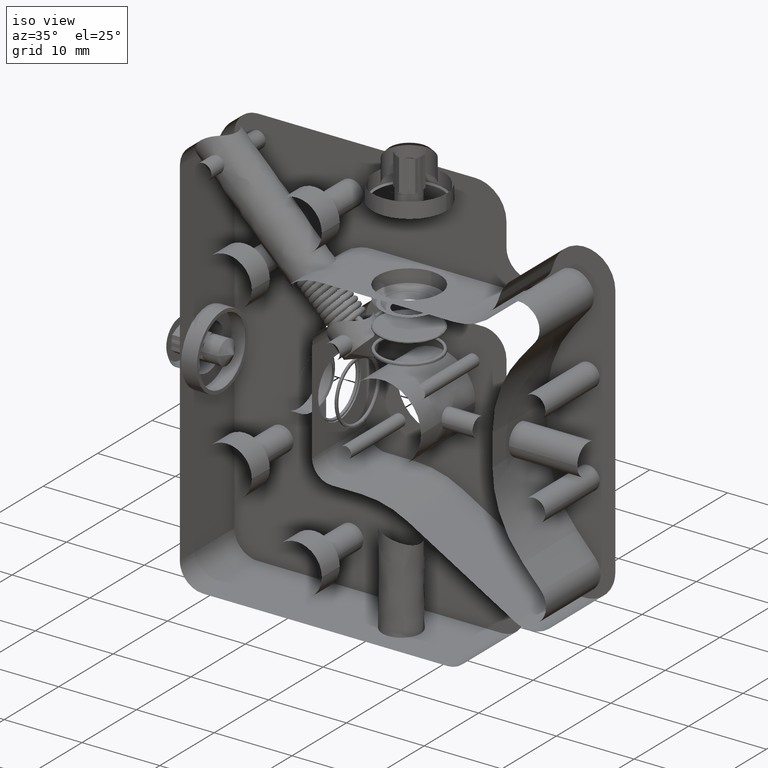
[diagram: clean part render]
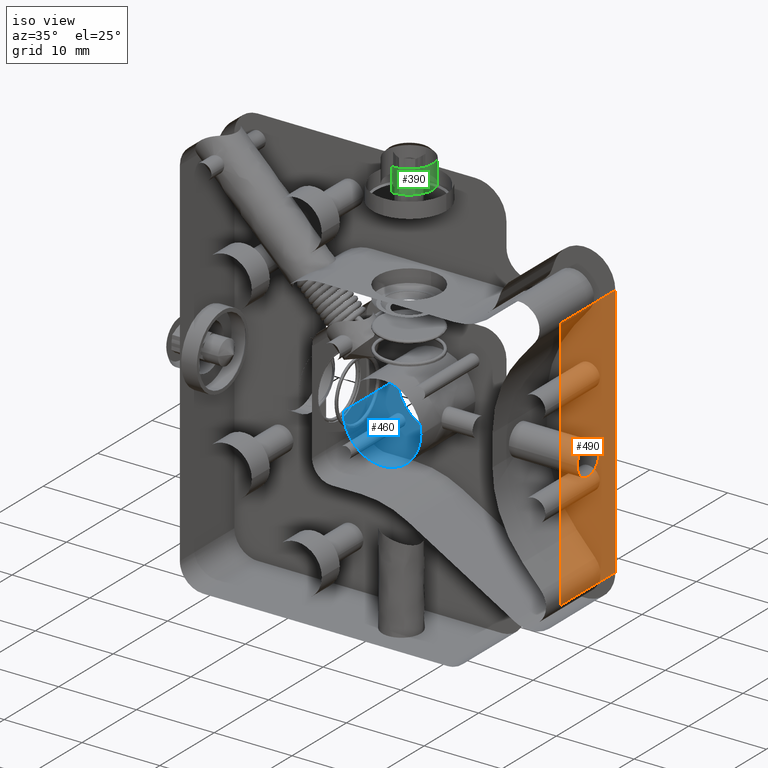
[diagram: same view with three faces highlighted in distinct colors, each labeled with its STEP entity id]
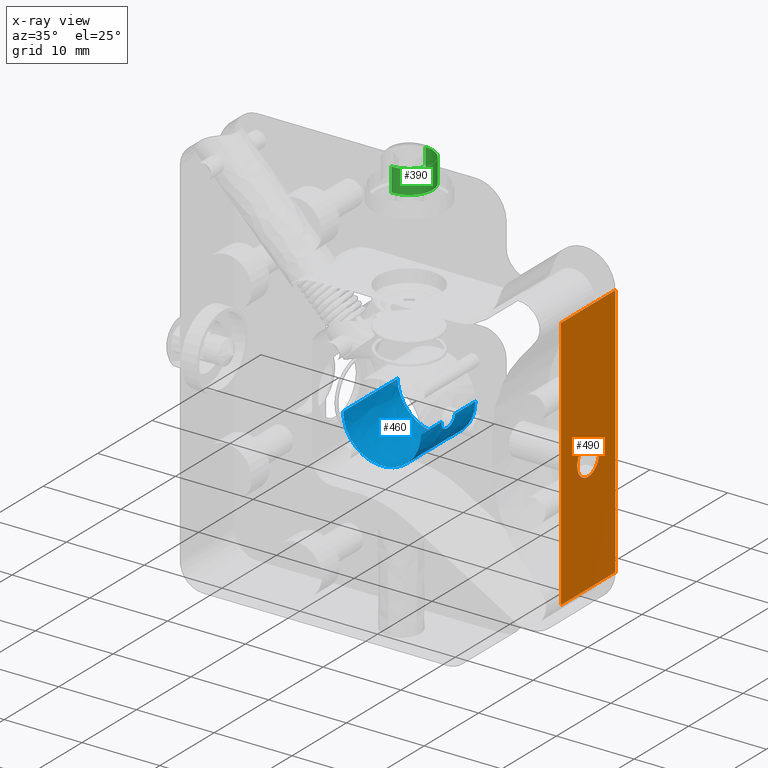
[diagram: x-ray of the same camera — body ghosted, the three highlighted faces saturated]
A machine part, iso view with three faces highlighted in distinct colors.
The next image is the same camera in x-ray (body ghosted, the three faces saturated) — at least one of them is partly hidden behind the body in this view.
Their STEP definitions:

[orange] entity #490 — the highlighted face is a freeform B-spline surface patch.
#275=FACE_BOUND('',#1079,.T.);
#490=ADVANCED_FACE('',(#771,#275),#10297,.T.);
#771=FACE_OUTER_BOUND('',#1078,.T.);
#1078=EDGE_LOOP('',(#2164,#2165,#2166,#2167));
#1079=EDGE_LOOP('',(#2168,#2169,#2170));
#2164=ORIENTED_EDGE('',*,*,#8824,.T.);
#2165=ORIENTED_EDGE('',*,*,#8825,.T.);
#2166=ORIENTED_EDGE('',*,*,#8826,.T.);
#2167=ORIENTED_EDGE('',*,*,#8822,.F.);
#2168=ORIENTED_EDGE('',*,*,#8679,.F.);
#2169=ORIENTED_EDGE('',*,*,#8683,.F.);
#2170=ORIENTED_EDGE('',*,*,#8686,.F.);
#3457=PCURVE('',#10420,#4980);
#3461=PCURVE('',#10421,#4984);
#3466=PCURVE('',#10421,#4989);
#3684=PCURVE('',#10447,#5207);
#3687=PCURVE('',#10297,#5210);
#3688=PCURVE('',#10297,#5211);
#3689=PCURVE('',#10297,#5212);
#3690=PCURVE('',#10297,#5213);
#3691=PCURVE('',#10297,#5214);
#3692=PCURVE('',#10297,#5215);
#3693=PCURVE('',#10297,#5216);
#3697=PCURVE('',#10448,#5220);
#3792=PCURVE('',#10307,#5315);
#3856=PCURVE('',#10308,#5379);
#4980=DEFINITIONAL_REPRESENTATION('',(#6633),#38234);
#4984=DEFINITIONAL_REPRESENTATION('',(#6639),#38234);
#4989=DEFINITIONAL_REPRESENTATION('',(#6645),#38234);
#5207=DEFINITIONAL_REPRESENTATION('',(#6917),#38234);
#5210=DEFINITIONAL_REPRESENTATION('',(#6921),#38234);
#5211=DEFINITIONAL_REPRESENTATION('',(#6923),#38234);
#5212=DEFINITIONAL_REPRESENTATION('',(#6925),#38234);
#5213=DEFINITIONAL_REPRESENTATION('',(#6926),#38234);
#5214=DEFINITIONAL_REPRESENTATION('',(#9441),#38234);
#5215=DEFINITIONAL_REPRESENTATION('',(#9442),#38234);
#5216=DEFINITIONAL_REPRESENTATION('',(#9443),#38234);
#5220=DEFINITIONAL_REPRESENTATION('',(#6931),#38234);
#5315=DEFINITIONAL_REPRESENTATION('',(#7034),#38234);
#5379=DEFINITIONAL_REPRESENTATION('',(#7055),#38234);
#6633=B_SPLINE_CURVE_WITH_KNOTS('',1,(#17084,#17085),.UNSPECIFIED.,.F.,
 .F.,(2,2),(-3.14159265358979,0.),.UNSPECIFIED.);
#6639=B_SPLINE_CURVE_WITH_KNOTS('',1,(#17108,#17109),.UNSPECIFIED.,.F.,
 .F.,(2,2),(-6.28318530717959,-3.14159265358979),.UNSPECIFIED.);
#6645=B_SPLINE_CURVE_WITH_KNOTS('',1,(#17140,#17141),.UNSPECIFIED.,.F.,
 .F.,(2,2),(-6.28318530717959,0.),.UNSPECIFIED.);
#6916=B_SPLINE_CURVE_WITH_KNOTS('',1,(#18590,#18591),.UNSPECIFIED.,.F.,
 .F.,(2,2),(-10.,0.),.UNSPECIFIED.);
#6917=B_SPLINE_CURVE_WITH_KNOTS('',1,(#18592,#18593),.UNSPECIFIED.,.F.,
 .F.,(2,2),(-10.,0.),.UNSPECIFIED.);
#6920=B_SPLINE_CURVE_WITH_KNOTS('',1,(#18603,#18604),.UNSPECIFIED.,.F.,
 .F.,(2,2),(0.,32.7988440148156),.UNSPECIFIED.);
#6921=B_SPLINE_CURVE_WITH_KNOTS('',1,(#18605,#18606),.UNSPECIFIED.,.F.,
 .F.,(2,2),(0.,32.7988440148156),.UNSPECIFIED.);
#6922=B_SPLINE_CURVE_WITH_KNOTS('',1,(#18607,#18608),.UNSPECIFIED.,.F.,
 .F.,(2,2),(-10.,0.),.UNSPECIFIED.);
#6923=B_SPLINE_CURVE_WITH_KNOTS('',1,(#18609,#18610),.UNSPECIFIED.,.F.,
 .F.,(2,2),(-10.,0.),.UNSPECIFIED.);
#6924=B_SPLINE_CURVE_WITH_KNOTS('',1,(#18611,#18612),.UNSPECIFIED.,.F.,
 .F.,(2,2),(0.,32.7988440148156),.UNSPECIFIED.);
#6925=B_SPLINE_CURVE_WITH_KNOTS('',1,(#18613,#18614),.UNSPECIFIED.,.F.,
 .F.,(2,2),(0.,32.7988440148156),.UNSPECIFIED.);
#6926=B_SPLINE_CURVE_WITH_KNOTS('',1,(#18615,#18616),.UNSPECIFIED.,.F.,
 .F.,(2,2),(-10.,0.),.UNSPECIFIED.);
#6931=B_SPLINE_CURVE_WITH_KNOTS('',1,(#18646,#18647),.UNSPECIFIED.,.F.,
 .F.,(2,2),(-10.,0.),.UNSPECIFIED.);
#7034=B_SPLINE_CURVE_WITH_KNOTS('',1,(#18976,#18977),.UNSPECIFIED.,.F.,
 .F.,(2,2),(0.,32.7988440148156),.UNSPECIFIED.);
#7055=B_SPLINE_CURVE_WITH_KNOTS('',1,(#19199,#19200),.UNSPECIFIED.,.F.,
 .F.,(2,2),(0.,32.7988440148156),.UNSPECIFIED.);
#7875=SURFACE_CURVE('',#9353,(#3457,#3691),.PCURVE_S1.);
#7879=SURFACE_CURVE('',#9355,(#3461,#3692),.PCURVE_S1.);
#7882=SURFACE_CURVE('',#9357,(#3466,#3693),.PCURVE_S1.);
#8018=SURFACE_CURVE('',#6916,(#3684,#3690),.PCURVE_S1.);
#8020=SURFACE_CURVE('',#6920,(#3687,#3856),.PCURVE_S1.);
#8021=SURFACE_CURVE('',#6922,(#3688,#3697),.PCURVE_S1.);
#8022=SURFACE_CURVE('',#6924,(#3689,#3792),.PCURVE_S1.);
#8679=EDGE_CURVE('',#9986,#9985,#7875,.T.);
#8683=EDGE_CURVE('',#9984,#9986,#7879,.T.);
#8686=EDGE_CURVE('',#9985,#9984,#7882,.T.);
#8822=EDGE_CURVE('',#10082,#10083,#8018,.T.);
#8824=EDGE_CURVE('',#10082,#10084,#8020,.T.);
#8825=EDGE_CURVE('',#10084,#10085,#8021,.T.);
#8826=EDGE_CURVE('',#10085,#10083,#8022,.T.);
#9353=(
BOUNDED_CURVE()
B_SPLINE_CURVE(2,(#17081,#17082,#17083),.UNSPECIFIED.,.F.,.F.)
B_SPLINE_CURVE_WITH_KNOTS((3,3),(-3.14159265358979,0.),.UNSPECIFIED.)
CURVE()
GEOMETRIC_REPRESENTATION_ITEM()
RATIONAL_B_SPLINE_CURVE((1.,0.707106781186553,1.))
REPRESENTATION_ITEM('')
);
#9355=(
BOUNDED_CURVE()
B_SPLINE_CURVE(2,(#17105,#17106,#17107),.UNSPECIFIED.,.F.,.F.)
B_SPLINE_CURVE_WITH_KNOTS((3,3),(-6.28318530717959,-3.14159265358979),
 .UNSPECIFIED.)
CURVE()
GEOMETRIC_REPRESENTATION_ITEM()
RATIONAL_B_SPLINE_CURVE((1.,0.707106781186555,1.))
REPRESENTATION_ITEM('')
);
#9357=(
BOUNDED_CURVE()
B_SPLINE_CURVE(2,(#17135,#17136,#17137,#17138,#17139),.UNSPECIFIED.,.F.,
 .F.)
B_SPLINE_CURVE_WITH_KNOTS((3,2,3),(-6.28318530717959,-3.14159265358979,
0.),.UNSPECIFIED.)
CURVE()
GEOMETRIC_REPRESENTATION_ITEM()
RATIONAL_B_SPLINE_CURVE((1.,0.707106781186543,1.,0.707106781186543,1.))
REPRESENTATION_ITEM('')
);
#9441=(
BOUNDED_CURVE()
B_SPLINE_CURVE(2,(#18617,#18618,#18619),.UNSPECIFIED.,.F.,.F.)
B_SPLINE_CURVE_WITH_KNOTS((3,3),(-3.14159265358979,0.),.UNSPECIFIED.)
CURVE()
GEOMETRIC_REPRESENTATION_ITEM()
RATIONAL_B_SPLINE_CURVE((1.,0.70710678118655,1.))
REPRESENTATION_ITEM('')
);
#9442=(
BOUNDED_CURVE()
B_SPLINE_CURVE(2,(#18620,#18621,#18622),.UNSPECIFIED.,.F.,.F.)
B_SPLINE_CURVE_WITH_KNOTS((3,3),(-6.28318530717959,-3.14159265358979),
 .UNSPECIFIED.)
CURVE()
GEOMETRIC_REPRESENTATION_ITEM()
RATIONAL_B_SPLINE_CURVE((1.,0.707106781186545,1.))
REPRESENTATION_ITEM('')
);
#9443=(
BOUNDED_CURVE()
B_SPLINE_CURVE(2,(#18623,#18624,#18625,#18626,#18627),.UNSPECIFIED.,.F.,
 .F.)
B_SPLINE_CURVE_WITH_KNOTS((3,2,3),(-6.28318530717959,-3.14159265358979,
0.),.UNSPECIFIED.)
CURVE()
GEOMETRIC_REPRESENTATION_ITEM()
RATIONAL_B_SPLINE_CURVE((1.,0.707106781186548,1.,0.707106781186548,1.))
REPRESENTATION_ITEM('')
);
#9984=VERTEX_POINT('',#13544);
#9985=VERTEX_POINT('',#13545);
#9986=VERTEX_POINT('',#13546);
#10082=VERTEX_POINT('',#13642);
#10083=VERTEX_POINT('',#13643);
#10084=VERTEX_POINT('',#13644);
#10085=VERTEX_POINT('',#13645);
#10297=B_SPLINE_SURFACE_WITH_KNOTS('',1,1,((#13090,#13091),(#13092,#13093)),
 .UNSPECIFIED.,.F.,.F.,.F.,(2,2),(2,2),(-11.12,1.12000000000012),(-36.1987284162972,
3.39988440148157),.UNSPECIFIED.);
#10307=B_SPLINE_SURFACE_WITH_KNOTS('',1,1,((#13256,#13257),(#13258,#13259)),
 .UNSPECIFIED.,.F.,.F.,.F.,(2,2),(2,2),(-31.1921061117909,31.4478938882091),
(-31.7014055422227,27.3385944577773),.UNSPECIFIED.);
#10308=B_SPLINE_SURFACE_WITH_KNOTS('',1,1,((#13260,#13261),(#13262,#13263)),
 .UNSPECIFIED.,.F.,.F.,.F.,(2,2),(2,2),(-31.7014055422227,27.3385944577773),
(-31.1921061117909,31.4478938882091),.UNSPECIFIED.);
#10420=(
BOUNDED_SURFACE()
B_SPLINE_SURFACE(1,2,((#12534,#12535,#12536,#12537,#12538,#12539,#12540,
#12541,#12542),(#12543,#12544,#12545,#12546,#12547,#12548,#12549,#12550,
#12551)),.UNSPECIFIED.,.F.,.F.,.F.)
B_SPLINE_SURFACE_WITH_KNOTS((2,2),(3,2,2,2,3),(0.,10.8),(0.,1.5707963267949,
3.14159265358979,4.71238898038469,6.28318530717959),.UNSPECIFIED.)
GEOMETRIC_REPRESENTATION_ITEM()
RATIONAL_B_SPLINE_SURFACE(((1.,0.707106781186548,1.,0.707106781186548,1.,
0.707106781186548,1.,0.707106781186548,1.),(1.,0.707106781186548,1.,0.707106781186548,
1.,0.707106781186548,1.,0.707106781186548,1.)))
REPRESENTATION_ITEM('')
SURFACE()
);
#10421=(
BOUNDED_SURFACE()
B_SPLINE_SURFACE(1,2,((#12552,#12553,#12554,#12555,#12556,#12557,#12558,
#12559,#12560),(#12561,#12562,#12563,#12564,#12565,#12566,#12567,#12568,
#12569)),.UNSPECIFIED.,.F.,.F.,.F.)
B_SPLINE_SURFACE_WITH_KNOTS((2,2),(3,2,2,2,3),(0.,10.8),(0.,1.5707963267949,
3.14159265358979,4.71238898038469,6.28318530717959),.UNSPECIFIED.)
GEOMETRIC_REPRESENTATION_ITEM()
RATIONAL_B_SPLINE_SURFACE(((1.,0.707106781186548,1.,0.707106781186548,1.,
0.707106781186548,1.,0.707106781186548,1.),(1.,0.707106781186548,1.,0.707106781186548,
1.,0.707106781186548,1.,0.707106781186548,1.)))
REPRESENTATION_ITEM('')
SURFACE()
);
#10447=(
BOUNDED_SURFACE()
B_SPLINE_SURFACE(2,1,((#13072,#13073),(#13074,#13075),(#13076,#13077),(#13078,
#13079),(#13080,#13081),(#13082,#13083),(#13084,#13085),(#13086,#13087),
(#13088,#13089)),.UNSPECIFIED.,.T.,.F.,.F.)
B_SPLINE_SURFACE_WITH_KNOTS((3,2,2,2,3),(2,2),(0.,1.5707963267949,3.14159265358979,
4.71238898038469,6.28318530717959),(0.,12.24),.UNSPECIFIED.)
GEOMETRIC_REPRESENTATION_ITEM()
RATIONAL_B_SPLINE_SURFACE(((1.,1.),(0.707106781186548,0.707106781186548),
(1.,1.),(0.707106781186548,0.707106781186548),(1.,1.),(0.707106781186548,
0.707106781186548),(1.,1.),(0.707106781186548,0.707106781186548),(1.,1.)))
REPRESENTATION_ITEM('')
SURFACE()
);
#10448=(
BOUNDED_SURFACE()
B_SPLINE_SURFACE(2,1,((#13094,#13095),(#13096,#13097),(#13098,#13099),(#13100,
#13101),(#13102,#13103),(#13104,#13105),(#13106,#13107),(#13108,#13109),
(#13110,#13111)),.UNSPECIFIED.,.T.,.F.,.F.)
B_SPLINE_SURFACE_WITH_KNOTS((3,2,2,2,3),(2,2),(0.,1.5707963267949,3.14159265358979,
4.71238898038469,6.28318530717959),(0.,12.24),.UNSPECIFIED.)
GEOMETRIC_REPRESENTATION_ITEM()
RATIONAL_B_SPLINE_SURFACE(((1.,1.),(0.707106781186548,0.707106781186548),
(1.,1.),(0.707106781186548,0.707106781186548),(1.,1.),(0.707106781186548,
0.707106781186548),(1.,1.),(0.707106781186548,0.707106781186548),(1.,1.)))
REPRESENTATION_ITEM('')
SURFACE()
);
#12534=CARTESIAN_POINT('',(2.07027620806736,34.4689438588719,51.5367132204771));
#12535=CARTESIAN_POINT('',(2.07027620806736,32.4689438588719,51.5367132204771));
#12536=CARTESIAN_POINT('',(2.07027620806736,32.4689438588719,49.5367132204771));
#12537=CARTESIAN_POINT('',(2.07027620806736,32.4689438588719,47.5367132204771));
#12538=CARTESIAN_POINT('',(2.07027620806736,34.4689438588719,47.5367132204771));
#12539=CARTESIAN_POINT('',(2.07027620806736,36.4689438588719,47.5367132204771));
#12540=CARTESIAN_POINT('',(2.07027620806736,36.4689438588719,49.5367132204771));
#12541=CARTESIAN_POINT('',(2.07027620806736,36.4689438588719,51.5367132204771));
#12542=CARTESIAN_POINT('',(2.07027620806736,34.4689438588719,51.5367132204771));
#12543=CARTESIAN_POINT('',(12.8702762080674,34.4689438588719,51.5367132204771));
#12544=CARTESIAN_POINT('',(12.8702762080674,32.4689438588719,51.5367132204771));
#12545=CARTESIAN_POINT('',(12.8702762080674,32.4689438588719,49.5367132204771));
#12546=CARTESIAN_POINT('',(12.8702762080674,32.4689438588719,47.5367132204772));
#12547=CARTESIAN_POINT('',(12.8702762080674,34.4689438588719,47.5367132204772));
#12548=CARTESIAN_POINT('',(12.8702762080674,36.4689438588719,47.5367132204772));
#12549=CARTESIAN_POINT('',(12.8702762080674,36.4689438588719,49.5367132204771));
#12550=CARTESIAN_POINT('',(12.8702762080674,36.4689438588719,51.5367132204771));
#12551=CARTESIAN_POINT('',(12.8702762080674,34.4689438588719,51.5367132204771));
#12552=CARTESIAN_POINT('',(2.07027620806736,34.4689438588719,51.5367132204771));
#12553=CARTESIAN_POINT('',(2.07027620806736,32.4689438588719,51.5367132204771));
#12554=CARTESIAN_POINT('',(2.07027620806736,32.4689438588719,49.5367132204771));
#12555=CARTESIAN_POINT('',(2.07027620806736,32.4689438588719,47.5367132204771));
#12556=CARTESIAN_POINT('',(2.07027620806736,34.4689438588719,47.5367132204771));
#12557=CARTESIAN_POINT('',(2.07027620806736,36.4689438588719,47.5367132204771));
#12558=CARTESIAN_POINT('',(2.07027620806736,36.4689438588719,49.5367132204771));
#12559=CARTESIAN_POINT('',(2.07027620806736,36.4689438588719,51.5367132204771));
#12560=CARTESIAN_POINT('',(2.07027620806736,34.4689438588719,51.5367132204771));
#12561=CARTESIAN_POINT('',(12.8702762080674,34.4689438588719,51.5367132204771));
#12562=CARTESIAN_POINT('',(12.8702762080674,32.4689438588719,51.5367132204771));
#12563=CARTESIAN_POINT('',(12.8702762080674,32.4689438588719,49.5367132204771));
#12564=CARTESIAN_POINT('',(12.8702762080674,32.4689438588719,47.5367132204772));
#12565=CARTESIAN_POINT('',(12.8702762080674,34.4689438588719,47.5367132204772));
#12566=CARTESIAN_POINT('',(12.8702762080674,36.4689438588719,47.5367132204772));
#12567=CARTESIAN_POINT('',(12.8702762080674,36.4689438588719,49.5367132204771));
#12568=CARTESIAN_POINT('',(12.8702762080674,36.4689438588719,51.5367132204771));
#12569=CARTESIAN_POINT('',(12.8702762080674,34.4689438588719,51.5367132204771));
#13072=CARTESIAN_POINT('',(3.87027620806736,52.2346549939127,43.4167132204772));
#13073=CARTESIAN_POINT('',(3.87027620806738,52.2346549939127,55.6567132204772));
#13074=CARTESIAN_POINT('',(3.87027620806736,48.2346549939127,43.4167132204772));
#13075=CARTESIAN_POINT('',(3.87027620806736,48.2346549939127,55.6567132204772));
#13076=CARTESIAN_POINT('',(7.87027620806737,48.2346549939127,43.4167132204772));
#13077=CARTESIAN_POINT('',(7.87027620806736,48.2346549939127,55.6567132204772));
#13078=CARTESIAN_POINT('',(11.8702762080674,48.2346549939127,43.4167132204772));
#13079=CARTESIAN_POINT('',(11.8702762080674,48.2346549939127,55.6567132204772));
#13080=CARTESIAN_POINT('',(11.8702762080674,52.2346549939127,43.4167132204772));
#13081=CARTESIAN_POINT('',(11.8702762080674,52.2346549939127,55.6567132204772));
#13082=CARTESIAN_POINT('',(11.8702762080674,56.2346549939127,43.4167132204772));
#13083=CARTESIAN_POINT('',(11.8702762080674,56.2346549939127,55.6567132204772));
#13084=CARTESIAN_POINT('',(7.87027620806737,56.2346549939127,43.4167132204772));
#13085=CARTESIAN_POINT('',(7.87027620806739,56.2346549939127,55.6567132204772));
#13086=CARTESIAN_POINT('',(3.87027620806737,56.2346549939127,43.4167132204772));
#13087=CARTESIAN_POINT('',(3.87027620806739,56.2346549939127,55.6567132204772));
#13088=CARTESIAN_POINT('',(3.87027620806736,52.2346549939127,43.4167132204772));
#13089=CARTESIAN_POINT('',(3.87027620806738,52.2346549939127,55.6567132204772));
#13090=CARTESIAN_POINT('',(11.8702762080674,16.0359265776155,55.6567132204772));
#13091=CARTESIAN_POINT('',(11.8702762080674,55.6345393953943,55.6567132204773));
#13092=CARTESIAN_POINT('',(11.8702762080674,16.0359265776155,43.416713220477));
#13093=CARTESIAN_POINT('',(11.8702762080674,55.6345393953943,43.4167132204771));
#13094=CARTESIAN_POINT('',(3.87027620806736,19.4358109790971,43.4167132204771));
#13095=CARTESIAN_POINT('',(3.87027620806738,19.4358109790971,55.6567132204771));
#13096=CARTESIAN_POINT('',(3.87027620806736,15.4358109790971,43.4167132204771));
#13097=CARTESIAN_POINT('',(3.87027620806737,15.4358109790971,55.6567132204771));
#13098=CARTESIAN_POINT('',(7.87027620806737,15.4358109790971,43.4167132204771));
#13099=CARTESIAN_POINT('',(7.87027620806737,15.4358109790971,55.6567132204771));
#13100=CARTESIAN_POINT('',(11.8702762080674,15.4358109790971,43.4167132204771));
#13101=CARTESIAN_POINT('',(11.8702762080674,15.4358109790971,55.6567132204771));
#13102=CARTESIAN_POINT('',(11.8702762080674,19.4358109790971,43.4167132204771));
#13103=CARTESIAN_POINT('',(11.8702762080674,19.4358109790971,55.6567132204771));
#13104=CARTESIAN_POINT('',(11.8702762080674,23.4358109790971,43.4167132204771));
#13105=CARTESIAN_POINT('',(11.8702762080674,23.4358109790971,55.6567132204771));
#13106=CARTESIAN_POINT('',(7.87027620806737,23.4358109790971,43.4167132204771));
#13107=CARTESIAN_POINT('',(7.87027620806739,23.4358109790971,55.6567132204771));
#13108=CARTESIAN_POINT('',(3.87027620806737,23.4358109790971,43.4167132204771));
#13109=CARTESIAN_POINT('',(3.87027620806739,23.4358109790971,55.6567132204771));
#13110=CARTESIAN_POINT('',(3.87027620806736,19.4358109790971,43.4167132204771));
#13111=CARTESIAN_POINT('',(3.87027620806738,19.4358109790971,55.6567132204771));
#13256=CARTESIAN_POINT('',(-42.1497237919326,3.1489438588719,44.5367132204772));
#13257=CARTESIAN_POINT('',(16.8902762080674,3.1489438588719,44.5367132204771));
#13258=CARTESIAN_POINT('',(-42.1497237919326,65.7889438588719,44.5367132204773));
#13259=CARTESIAN_POINT('',(16.8902762080674,65.7889438588719,44.5367132204772));
#13260=CARTESIAN_POINT('',(-42.1497237919326,3.1489438588719,54.5367132204772));
#13261=CARTESIAN_POINT('',(-42.1497237919326,65.7889438588719,54.5367132204773));
#13262=CARTESIAN_POINT('',(16.8902762080674,3.1489438588719,54.5367132204771));
#13263=CARTESIAN_POINT('',(16.8902762080674,65.7889438588719,54.5367132204772));
#13544=CARTESIAN_POINT('',(11.8702762080674,36.4689438588719,49.5367132204772));
#13545=CARTESIAN_POINT('',(11.8702762080674,32.4689438588719,49.5367132204772));
#13546=CARTESIAN_POINT('',(11.8702762080674,34.4689438588719,51.5367132204771));
#13642=CARTESIAN_POINT('',(11.8702762080674,52.2346549939127,54.5367132204772));
#13643=CARTESIAN_POINT('',(11.8702762080674,52.2346549939127,44.5367132204772));
#13644=CARTESIAN_POINT('',(11.8702762080674,19.4358109790971,54.5367132204771));
#13645=CARTESIAN_POINT('',(11.8702762080674,19.4358109790971,44.5367132204771));
#17081=CARTESIAN_POINT('',(11.8702762080674,34.4689438588719,51.5367132204771));
#17082=CARTESIAN_POINT('',(11.8702762080674,32.4689438588719,51.5367132204771));
#17083=CARTESIAN_POINT('',(11.8702762080674,32.4689438588719,49.5367132204772));
#17084=CARTESIAN_POINT('',(9.80000000000004,0.));
#17085=CARTESIAN_POINT('',(9.80000000000004,1.5707963267949));
#17105=CARTESIAN_POINT('',(11.8702762080674,36.4689438588719,49.5367132204772));
#17106=CARTESIAN_POINT('',(11.8702762080674,36.4689438588718,51.5367132204771));
#17107=CARTESIAN_POINT('',(11.8702762080674,34.4689438588719,51.5367132204771));
#17108=CARTESIAN_POINT('',(9.80000000000004,4.71238898038469));
#17109=CARTESIAN_POINT('',(9.80000000000004,6.28318530717959));
#17135=CARTESIAN_POINT('',(11.8702762080674,32.4689438588719,49.5367132204772));
#17136=CARTESIAN_POINT('',(11.8702762080674,32.4689438588719,47.5367132204771));
#17137=CARTESIAN_POINT('',(11.8702762080674,34.4689438588719,47.5367132204772));
#17138=CARTESIAN_POINT('',(11.8702762080674,36.4689438588719,47.5367132204772));
#17139=CARTESIAN_POINT('',(11.8702762080674,36.4689438588719,49.5367132204772));
#17140=CARTESIAN_POINT('',(9.80000000000004,1.5707963267949));
#17141=CARTESIAN_POINT('',(9.80000000000004,4.71238898038469));
#18590=CARTESIAN_POINT('',(11.8702762080674,52.2346549939127,54.5367132204772));
#18591=CARTESIAN_POINT('',(11.8702762080674,52.2346549939127,44.5367132204772));
#18592=CARTESIAN_POINT('',(3.14159265358979,11.12));
#18593=CARTESIAN_POINT('',(3.14159265358979,1.12000000000003));
#18603=CARTESIAN_POINT('',(11.8702762080674,52.2346549939127,54.5367132204772));
#18604=CARTESIAN_POINT('',(11.8702762080674,19.4358109790971,54.5367132204771));
#18605=CARTESIAN_POINT('',(-10.,8.88178419700132E-15));
#18606=CARTESIAN_POINT('',(-9.99999999999992,-32.7988440148156));
#18607=CARTESIAN_POINT('',(11.8702762080674,19.4358109790971,54.5367132204771));
#18608=CARTESIAN_POINT('',(11.8702762080674,19.4358109790971,44.5367132204771));
#18609=CARTESIAN_POINT('',(-9.99999999999992,-32.7988440148156));
#18610=CARTESIAN_POINT('',(7.7450184918945E-14,-32.7988440148156));
#18611=CARTESIAN_POINT('',(11.8702762080674,19.4358109790971,44.5367132204771));
#18612=CARTESIAN_POINT('',(11.8702762080674,52.2346549939127,44.5367132204772));
#18613=CARTESIAN_POINT('',(7.7450184918945E-14,-32.7988440148156));
#18614=CARTESIAN_POINT('',(0.,0.));
#18615=CARTESIAN_POINT('',(-10.,8.88178419700132E-15));
#18616=CARTESIAN_POINT('',(0.,0.));
#18617=CARTESIAN_POINT('',(-7.00000000000001,-17.7657111350408));
#18618=CARTESIAN_POINT('',(-7.,-19.7657111350408));
#18619=CARTESIAN_POINT('',(-5.00000000000002,-19.7657111350408));
#18620=CARTESIAN_POINT('',(-5.00000000000001,-15.7657111350408));
#18621=CARTESIAN_POINT('',(-7.00000000000002,-15.7657111350408));
#18622=CARTESIAN_POINT('',(-7.00000000000001,-17.7657111350408));
#18623=CARTESIAN_POINT('',(-5.00000000000002,-19.7657111350408));
#18624=CARTESIAN_POINT('',(-3.00000000000002,-19.7657111350408));
#18625=CARTESIAN_POINT('',(-3.00000000000001,-17.7657111350408));
#18626=CARTESIAN_POINT('',(-3.00000000000002,-15.7657111350408));
#18627=CARTESIAN_POINT('',(-5.00000000000001,-15.7657111350408));
#18646=CARTESIAN_POINT('',(3.14159265358979,11.12));
#18647=CARTESIAN_POINT('',(3.14159265358979,1.12000000000002));
#18976=CARTESIAN_POINT('',(-14.9052389915657,22.3185944577773));
#18977=CARTESIAN_POINT('',(17.8936050232499,22.3185944577773));
#19199=CARTESIAN_POINT('',(22.3185944577773,17.8936050232499));
#19200=CARTESIAN_POINT('',(22.3185944577773,-14.9052389915657));
#38234=(
GEOMETRIC_REPRESENTATION_CONTEXT(2)
PARAMETRIC_REPRESENTATION_CONTEXT()
REPRESENTATION_CONTEXT('pspace','')
);

[blue] entity #460 — the highlighted face is a freeform B-spline surface patch.
#460=ADVANCED_FACE('',(#741),#10429,.T.);
#741=FACE_OUTER_BOUND('',#1040,.T.);
#1040=EDGE_LOOP('',(#2013,#2014,#2015,#2016,#2017,#2018,#2019));
#2013=ORIENTED_EDGE('',*,*,#8726,.F.);
#2014=ORIENTED_EDGE('',*,*,#8731,.T.);
#2015=ORIENTED_EDGE('',*,*,#8729,.F.);
#2016=ORIENTED_EDGE('',*,*,#8732,.T.);
#2017=ORIENTED_EDGE('',*,*,#8727,.F.);
#2018=ORIENTED_EDGE('',*,*,#8672,.F.);
#2019=ORIENTED_EDGE('',*,*,#8675,.F.);
#3448=PCURVE('',#10418,#4971);
#3452=PCURVE('',#10419,#4975);
#3529=PCURVE('',#10428,#5052);
#3532=PCURVE('',#10428,#5055);
#3534=PCURVE('',#10428,#5057);
#3536=PCURVE('',#10429,#5059);
#3537=PCURVE('',#10429,#5060);
#3538=PCURVE('',#10429,#5061);
#3539=PCURVE('',#10429,#5062);
#3540=PCURVE('',#10429,#5063);
#3541=PCURVE('',#10429,#5064);
#3542=PCURVE('',#10429,#5065);
#3833=PCURVE('',#10307,#5356);
#3898=PCURVE('',#10308,#5421);
#4971=DEFINITIONAL_REPRESENTATION('',(#6620),#38234);
#4975=DEFINITIONAL_REPRESENTATION('',(#6627),#38234);
#5052=DEFINITIONAL_REPRESENTATION('',(#6730),#38234);
#5055=DEFINITIONAL_REPRESENTATION('',(#6734),#38234);
#5057=DEFINITIONAL_REPRESENTATION('',(#6737),#38234);
#5059=DEFINITIONAL_REPRESENTATION('',(#6739),#38234);
#5060=DEFINITIONAL_REPRESENTATION('',(#6740),#38234);
#5061=DEFINITIONAL_REPRESENTATION('',(#6741),#38234);
#5062=DEFINITIONAL_REPRESENTATION('',(#6742),#38234);
#5063=DEFINITIONAL_REPRESENTATION('',(#6743),#38234);
#5064=DEFINITIONAL_REPRESENTATION('',(#6744),#38234);
#5065=DEFINITIONAL_REPRESENTATION('',(#6745),#38234);
#5356=DEFINITIONAL_REPRESENTATION('',(#9508),#38234);
#5421=DEFINITIONAL_REPRESENTATION('',(#9552),#38234);
#6619=B_SPLINE_CURVE_WITH_KNOTS('',3,(#17013,#17014,#17015,#17016,#17017,
#17018),.UNSPECIFIED.,.F.,.F.,(4,2,4),(-0.372158439290545,-0.279125442266905,
-0.186079219645273),.UNSPECIFIED.);
#6620=B_SPLINE_CURVE_WITH_KNOTS('',3,(#17019,#17020,#17021,#17022,#17023,
#17024),.UNSPECIFIED.,.F.,.F.,(4,2,4),(-0.372158439290545,-0.279120032651611,
-0.186079219645273),.UNSPECIFIED.);
#6626=B_SPLINE_CURVE_WITH_KNOTS('',3,(#17051,#17052,#17053,#17054,#17055,
#17056),.UNSPECIFIED.,.F.,.F.,(4,2,4),(-0.558237658935821,-0.46519143631419,
-0.372158439290545),.UNSPECIFIED.);
#6627=B_SPLINE_CURVE_WITH_KNOTS('',3,(#17057,#17058,#17059,#17060,#17061,
#17062),.UNSPECIFIED.,.F.,.F.,(4,2,4),(-0.558237658935821,-0.465196845929479,
-0.372158439290545),.UNSPECIFIED.);
#6729=B_SPLINE_CURVE_WITH_KNOTS('',1,(#17620,#17621),.UNSPECIFIED.,.F.,
 .F.,(2,2),(1.12000000000003,4.89050000000003),.UNSPECIFIED.);
#6730=B_SPLINE_CURVE_WITH_KNOTS('',1,(#17622,#17623),.UNSPECIFIED.,.F.,
 .F.,(2,2),(1.12000000000003,4.89050000000003),.UNSPECIFIED.);
#6733=B_SPLINE_CURVE_WITH_KNOTS('',1,(#17652,#17653),.UNSPECIFIED.,.F.,
 .F.,(2,2),(7.34950000000003,11.12),.UNSPECIFIED.);
#6734=B_SPLINE_CURVE_WITH_KNOTS('',1,(#17654,#17655),.UNSPECIFIED.,.F.,
 .F.,(2,2),(7.34950000000003,11.12),.UNSPECIFIED.);
#6736=B_SPLINE_CURVE_WITH_KNOTS('',1,(#17663,#17664),.UNSPECIFIED.,.F.,
 .F.,(2,2),(0.,10.),.UNSPECIFIED.);
#6737=B_SPLINE_CURVE_WITH_KNOTS('',1,(#17665,#17666),.UNSPECIFIED.,.F.,
 .F.,(2,2),(0.,10.),.UNSPECIFIED.);
#6739=B_SPLINE_CURVE_WITH_KNOTS('',1,(#17674,#17675),.UNSPECIFIED.,.F.,
 .F.,(2,2),(1.12000000000003,4.89050000000003),.UNSPECIFIED.);
#6740=B_SPLINE_CURVE_WITH_KNOTS('',1,(#17681,#17682),.UNSPECIFIED.,.F.,
 .F.,(2,2),(-15.707963267949,0.),.UNSPECIFIED.);
#6741=B_SPLINE_CURVE_WITH_KNOTS('',1,(#17683,#17684),.UNSPECIFIED.,.F.,
 .F.,(2,2),(0.,10.),.UNSPECIFIED.);
#6742=B_SPLINE_CURVE_WITH_KNOTS('',1,(#17690,#17691),.UNSPECIFIED.,.F.,
 .F.,(2,2),(-15.707963267949,0.),.UNSPECIFIED.);
#6743=B_SPLINE_CURVE_WITH_KNOTS('',1,(#17692,#17693),.UNSPECIFIED.,.F.,
 .F.,(2,2),(7.34950000000003,11.12),.UNSPECIFIED.);
#6744=B_SPLINE_CURVE_WITH_KNOTS('',3,(#17694,#17695,#17696,#17697,#17698,
#17699,#17700,#17701,#17702,#17703,#17704,#17705,#17706,#17707),
 .UNSPECIFIED.,.F.,.F.,(4,2,2,2,2,2,4),(-0.372158439290545,-0.304629387421873,
-0.247259490061785,-0.224876751117776,-0.207457591304734,-0.194977611582949,
-0.186079219645273),.UNSPECIFIED.);
#6745=B_SPLINE_CURVE_WITH_KNOTS('',3,(#17708,#17709,#17710,#17711,#17712,
#17713,#17714,#17715,#17716,#17717,#17718,#17719,#17720,#17721),
 .UNSPECIFIED.,.F.,.F.,(4,2,2,2,2,2,4),(-0.558237658935821,-0.549339266998145,
-0.536859287276362,-0.519440127463319,-0.497057388519307,-0.43968749115922,
-0.372158439290545),.UNSPECIFIED.);
#7868=SURFACE_CURVE('',#6619,(#3448,#3541),.PCURVE_S1.);
#7871=SURFACE_CURVE('',#6626,(#3452,#3542),.PCURVE_S1.);
#7922=SURFACE_CURVE('',#6729,(#3529,#3536),.PCURVE_S1.);
#7923=SURFACE_CURVE('',#6733,(#3532,#3540),.PCURVE_S1.);
#7925=SURFACE_CURVE('',#6736,(#3534,#3538),.PCURVE_S1.);
#7927=SURFACE_CURVE('',#9378,(#3537,#3833),.PCURVE_S1.);
#7928=SURFACE_CURVE('',#9379,(#3539,#3898),.PCURVE_S1.);
#8672=EDGE_CURVE('',#9981,#9982,#7868,.T.);
#8675=EDGE_CURVE('',#10021,#9981,#7871,.T.);
#8726=EDGE_CURVE('',#10017,#10021,#7922,.T.);
#8727=EDGE_CURVE('',#9982,#10019,#7923,.T.);
#8729=EDGE_CURVE('',#10020,#10018,#7925,.T.);
#8731=EDGE_CURVE('',#10017,#10018,#7927,.T.);
#8732=EDGE_CURVE('',#10020,#10019,#7928,.T.);
#9378=(
BOUNDED_CURVE()
B_SPLINE_CURVE(2,(#17676,#17677,#17678,#17679,#17680),.UNSPECIFIED.,.F.,
 .F.)
B_SPLINE_CURVE_WITH_KNOTS((3,2,3),(-15.707963267949,-7.8539816339745,0.),
 .UNSPECIFIED.)
CURVE()
GEOMETRIC_REPRESENTATION_ITEM()
RATIONAL_B_SPLINE_CURVE((1.,0.707106781186548,1.,0.707106781186548,1.))
REPRESENTATION_ITEM('')
);
#9379=(
BOUNDED_CURVE()
B_SPLINE_CURVE(2,(#17685,#17686,#17687,#17688,#17689),.UNSPECIFIED.,.F.,
 .F.)
B_SPLINE_CURVE_WITH_KNOTS((3,2,3),(-15.707963267949,-7.85398163397448,0.),
 .UNSPECIFIED.)
CURVE()
GEOMETRIC_REPRESENTATION_ITEM()
RATIONAL_B_SPLINE_CURVE((1.,0.707106781186547,1.,0.707106781186547,1.))
REPRESENTATION_ITEM('')
);
#9508=(
BOUNDED_CURVE()
B_SPLINE_CURVE(2,(#19132,#19133,#19134,#19135,#19136),.UNSPECIFIED.,.F.,
 .F.)
B_SPLINE_CURVE_WITH_KNOTS((3,2,3),(-15.707963267949,-7.8539816339745,0.),
 .UNSPECIFIED.)
CURVE()
GEOMETRIC_REPRESENTATION_ITEM()
RATIONAL_B_SPLINE_CURVE((1.,0.707106781186548,1.,0.707106781186548,1.))
REPRESENTATION_ITEM('')
);
#9552=(
BOUNDED_CURVE()
B_SPLINE_CURVE(2,(#19364,#19365,#19366,#19367,#19368),.UNSPECIFIED.,.F.,
 .F.)
B_SPLINE_CURVE_WITH_KNOTS((3,2,3),(-15.707963267949,-7.85398163397448,0.),
 .UNSPECIFIED.)
CURVE()
GEOMETRIC_REPRESENTATION_ITEM()
RATIONAL_B_SPLINE_CURVE((1.,0.707106781186548,1.,0.707106781186548,1.))
REPRESENTATION_ITEM('')
);
#9981=VERTEX_POINT('',#13541);
#9982=VERTEX_POINT('',#13542);
#10017=VERTEX_POINT('',#13577);
#10018=VERTEX_POINT('',#13578);
#10019=VERTEX_POINT('',#13579);
#10020=VERTEX_POINT('',#13580);
#10021=VERTEX_POINT('',#13581);
#10307=B_SPLINE_SURFACE_WITH_KNOTS('',1,1,((#13256,#13257),(#13258,#13259)),
 .UNSPECIFIED.,.F.,.F.,.F.,(2,2),(2,2),(-31.1921061117909,31.4478938882091),
(-31.7014055422227,27.3385944577773),.UNSPECIFIED.);
#10308=B_SPLINE_SURFACE_WITH_KNOTS('',1,1,((#13260,#13261),(#13262,#13263)),
 .UNSPECIFIED.,.F.,.F.,.F.,(2,2),(2,2),(-31.7014055422227,27.3385944577773),
(-31.1921061117909,31.4478938882091),.UNSPECIFIED.);
#10418=(
BOUNDED_SURFACE()
B_SPLINE_SURFACE(1,2,((#12498,#12499,#12500,#12501,#12502,#12503,#12504,
#12505,#12506),(#12507,#12508,#12509,#12510,#12511,#12512,#12513,#12514,
#12515)),.UNSPECIFIED.,.F.,.F.,.F.)
B_SPLINE_SURFACE_WITH_KNOTS((2,2),(3,2,2,2,3),(0.,5.22422878372955),(0.,
1.5707963267949,3.14159265358979,4.71238898038469,6.28318530717959),
 .UNSPECIFIED.)
GEOMETRIC_REPRESENTATION_ITEM()
RATIONAL_B_SPLINE_SURFACE(((1.,0.707106781186548,1.,0.707106781186548,1.,
0.707106781186548,1.,0.707106781186548,1.),(1.,0.707106781186548,1.,0.707106781186548,
1.,0.707106781186548,1.,0.707106781186548,1.)))
REPRESENTATION_ITEM('')
SURFACE()
);
#10419=(
BOUNDED_SURFACE()
B_SPLINE_SURFACE(1,2,((#12516,#12517,#12518,#12519,#12520,#12521,#12522,
#12523,#12524),(#12525,#12526,#12527,#12528,#12529,#12530,#12531,#12532,
#12533)),.UNSPECIFIED.,.F.,.F.,.F.)
B_SPLINE_SURFACE_WITH_KNOTS((2,2),(3,2,2,2,3),(0.,5.22422878372955),(0.,
1.5707963267949,3.14159265358979,4.71238898038469,6.28318530717959),
 .UNSPECIFIED.)
GEOMETRIC_REPRESENTATION_ITEM()
RATIONAL_B_SPLINE_SURFACE(((1.,0.707106781186548,1.,0.707106781186548,1.,
0.707106781186548,1.,0.707106781186548,1.),(1.,0.707106781186548,1.,0.707106781186548,
1.,0.707106781186548,1.,0.707106781186548,1.)))
REPRESENTATION_ITEM('')
SURFACE()
);
#10428=(
BOUNDED_SURFACE()
B_SPLINE_SURFACE(1,2,((#12686,#12687,#12688,#12689,#12690,#12691,#12692,
#12693,#12694),(#12695,#12696,#12697,#12698,#12699,#12700,#12701,#12702,
#12703)),.UNSPECIFIED.,.F.,.F.,.F.)
B_SPLINE_SURFACE_WITH_KNOTS((2,2),(3,2,2,2,3),(0.,12.2400000000001),(0.,
1.5707963267949,3.14159265358979,4.71238898038469,6.28318530717959),
 .UNSPECIFIED.)
GEOMETRIC_REPRESENTATION_ITEM()
RATIONAL_B_SPLINE_SURFACE(((1.,0.707106781186548,1.,0.707106781186548,1.,
0.707106781186548,1.,0.707106781186548,1.),(1.,0.707106781186548,1.,0.707106781186548,
1.,0.707106781186548,1.,0.707106781186548,1.)))
REPRESENTATION_ITEM('')
SURFACE()
);
#10429=(
BOUNDED_SURFACE()
B_SPLINE_SURFACE(1,2,((#12704,#12705,#12706,#12707,#12708,#12709,#12710,
#12711,#12712),(#12713,#12714,#12715,#12716,#12717,#12718,#12719,#12720,
#12721)),.UNSPECIFIED.,.F.,.F.,.F.)
B_SPLINE_SURFACE_WITH_KNOTS((2,2),(3,2,2,2,3),(0.,12.2400000000001),(0.,
1.5707963267949,3.14159265358979,4.71238898038469,6.28318530717959),
 .UNSPECIFIED.)
GEOMETRIC_REPRESENTATION_ITEM()
RATIONAL_B_SPLINE_SURFACE(((1.,0.707106781186548,1.,0.707106781186548,1.,
0.707106781186548,1.,0.707106781186548,1.),(1.,0.707106781186548,1.,0.707106781186548,
1.,0.707106781186548,1.,0.707106781186548,1.)))
REPRESENTATION_ITEM('')
SURFACE()
);
#12498=CARTESIAN_POINT('',(-6.81860017701805,34.4689438588719,50.7662132204772));
#12499=CARTESIAN_POINT('',(-6.81860017701805,33.2394438588719,50.7662132204772));
#12500=CARTESIAN_POINT('',(-6.81860017701805,33.2394438588719,49.5367132204772));
#12501=CARTESIAN_POINT('',(-6.81860017701805,33.2394438588719,48.3072132204772));
#12502=CARTESIAN_POINT('',(-6.81860017701805,34.4689438588719,48.3072132204772));
#12503=CARTESIAN_POINT('',(-6.81860017701805,35.6984438588719,48.3072132204772));
#12504=CARTESIAN_POINT('',(-6.81860017701805,35.6984438588719,49.5367132204772));
#12505=CARTESIAN_POINT('',(-6.81860017701805,35.6984438588719,50.7662132204772));
#12506=CARTESIAN_POINT('',(-6.81860017701805,34.4689438588719,50.7662132204772));
#12507=CARTESIAN_POINT('',(-1.5943713932885,34.4689438588719,50.7662132204772));
#12508=CARTESIAN_POINT('',(-1.5943713932885,33.2394438588719,50.7662132204772));
#12509=CARTESIAN_POINT('',(-1.5943713932885,33.2394438588719,49.5367132204772));
#12510=CARTESIAN_POINT('',(-1.5943713932885,33.2394438588719,48.3072132204772));
#12511=CARTESIAN_POINT('',(-1.5943713932885,34.4689438588719,48.3072132204772));
#12512=CARTESIAN_POINT('',(-1.5943713932885,35.6984438588719,48.3072132204772));
#12513=CARTESIAN_POINT('',(-1.5943713932885,35.6984438588719,49.5367132204772));
#12514=CARTESIAN_POINT('',(-1.5943713932885,35.6984438588719,50.7662132204772));
#12515=CARTESIAN_POINT('',(-1.5943713932885,34.4689438588719,50.7662132204772));
#12516=CARTESIAN_POINT('',(-6.81860017701805,34.4689438588719,50.7662132204772));
#12517=CARTESIAN_POINT('',(-6.81860017701805,33.2394438588719,50.7662132204772));
#12518=CARTESIAN_POINT('',(-6.81860017701805,33.2394438588719,49.5367132204772));
#12519=CARTESIAN_POINT('',(-6.81860017701805,33.2394438588719,48.3072132204772));
#12520=CARTESIAN_POINT('',(-6.81860017701805,34.4689438588719,48.3072132204772));
#12521=CARTESIAN_POINT('',(-6.81860017701805,35.6984438588719,48.3072132204772));
#12522=CARTESIAN_POINT('',(-6.81860017701805,35.6984438588719,49.5367132204772));
#12523=CARTESIAN_POINT('',(-6.81860017701805,35.6984438588719,50.7662132204772));
#12524=CARTESIAN_POINT('',(-6.81860017701805,34.4689438588719,50.7662132204772));
#12525=CARTESIAN_POINT('',(-1.5943713932885,34.4689438588719,50.7662132204772));
#12526=CARTESIAN_POINT('',(-1.5943713932885,33.2394438588719,50.7662132204772));
#12527=CARTESIAN_POINT('',(-1.5943713932885,33.2394438588719,49.5367132204772));
#12528=CARTESIAN_POINT('',(-1.5943713932885,33.2394438588719,48.3072132204772));
#12529=CARTESIAN_POINT('',(-1.5943713932885,34.4689438588719,48.3072132204772));
#12530=CARTESIAN_POINT('',(-1.5943713932885,35.6984438588719,48.3072132204772));
#12531=CARTESIAN_POINT('',(-1.5943713932885,35.6984438588719,49.5367132204772));
#12532=CARTESIAN_POINT('',(-1.5943713932885,35.6984438588719,50.7662132204772));
#12533=CARTESIAN_POINT('',(-1.5943713932885,34.4689438588719,50.7662132204772));
#12686=CARTESIAN_POINT('',(-6.12972379193264,34.4689438588719,43.4167132204772));
#12687=CARTESIAN_POINT('',(-6.12972379193264,39.4689438588719,43.4167132204772));
#12688=CARTESIAN_POINT('',(-11.1297237919326,39.4689438588719,43.4167132204772));
#12689=CARTESIAN_POINT('',(-16.1297237919326,39.4689438588719,43.4167132204772));
#12690=CARTESIAN_POINT('',(-16.1297237919326,34.4689438588719,43.4167132204772));
#12691=CARTESIAN_POINT('',(-16.1297237919326,29.4689438588719,43.4167132204772));
#12692=CARTESIAN_POINT('',(-11.1297237919326,29.4689438588719,43.4167132204772));
#12693=CARTESIAN_POINT('',(-6.12972379193264,29.4689438588719,43.4167132204772));
#12694=CARTESIAN_POINT('',(-6.12972379193264,34.4689438588719,43.4167132204772));
#12695=CARTESIAN_POINT('',(-6.12972379193263,34.4689438588719,55.6567132204772));
#12696=CARTESIAN_POINT('',(-6.12972379193262,39.4689438588719,55.6567132204772));
#12697=CARTESIAN_POINT('',(-11.1297237919326,39.4689438588719,55.6567132204772));
#12698=CARTESIAN_POINT('',(-16.1297237919326,39.468943858872,55.6567132204773));
#12699=CARTESIAN_POINT('',(-16.1297237919326,34.468943858872,55.6567132204773));
#12700=CARTESIAN_POINT('',(-16.1297237919326,29.468943858872,55.6567132204773));
#12701=CARTESIAN_POINT('',(-11.1297237919326,29.468943858872,55.6567132204772));
#12702=CARTESIAN_POINT('',(-6.12972379193265,29.4689438588719,55.6567132204772));
#12703=CARTESIAN_POINT('',(-6.12972379193263,34.4689438588719,55.6567132204772));
#12704=CARTESIAN_POINT('',(-6.12972379193264,34.4689438588719,43.4167132204772));
#12705=CARTESIAN_POINT('',(-6.12972379193264,39.4689438588719,43.4167132204772));
#12706=CARTESIAN_POINT('',(-11.1297237919326,39.4689438588719,43.4167132204772));
#12707=CARTESIAN_POINT('',(-16.1297237919326,39.4689438588719,43.4167132204772));
#12708=CARTESIAN_POINT('',(-16.1297237919326,34.4689438588719,43.4167132204772));
#12709=CARTESIAN_POINT('',(-16.1297237919326,29.4689438588719,43.4167132204772));
#12710=CARTESIAN_POINT('',(-11.1297237919326,29.4689438588719,43.4167132204772));
#12711=CARTESIAN_POINT('',(-6.12972379193264,29.4689438588719,43.4167132204772));
#12712=CARTESIAN_POINT('',(-6.12972379193264,34.4689438588719,43.4167132204772));
#12713=CARTESIAN_POINT('',(-6.12972379193263,34.4689438588719,55.6567132204772));
#12714=CARTESIAN_POINT('',(-6.12972379193262,39.4689438588719,55.6567132204772));
#12715=CARTESIAN_POINT('',(-11.1297237919326,39.4689438588719,55.6567132204772));
#12716=CARTESIAN_POINT('',(-16.1297237919326,39.468943858872,55.6567132204773));
#12717=CARTESIAN_POINT('',(-16.1297237919326,34.468943858872,55.6567132204773));
#12718=CARTESIAN_POINT('',(-16.1297237919326,29.468943858872,55.6567132204773));
#12719=CARTESIAN_POINT('',(-11.1297237919326,29.468943858872,55.6567132204772));
#12720=CARTESIAN_POINT('',(-6.12972379193265,29.4689438588719,55.6567132204772));
#12721=CARTESIAN_POINT('',(-6.12972379193263,34.4689438588719,55.6567132204772));
#13256=CARTESIAN_POINT('',(-42.1497237919326,3.1489438588719,44.5367132204772));
#13257=CARTESIAN_POINT('',(16.8902762080674,3.1489438588719,44.5367132204771));
#13258=CARTESIAN_POINT('',(-42.1497237919326,65.7889438588719,44.5367132204773));
#13259=CARTESIAN_POINT('',(16.8902762080674,65.7889438588719,44.5367132204772));
#13260=CARTESIAN_POINT('',(-42.1497237919326,3.1489438588719,54.5367132204772));
#13261=CARTESIAN_POINT('',(-42.1497237919326,65.7889438588719,54.5367132204773));
#13262=CARTESIAN_POINT('',(16.8902762080674,3.1489438588719,54.5367132204771));
#13263=CARTESIAN_POINT('',(16.8902762080674,65.7889438588719,54.5367132204772));
#13541=CARTESIAN_POINT('',(-6.28324777837392,33.2394438588719,49.5367132204772));
#13542=CARTESIAN_POINT('',(-6.12972379193263,34.4689438588719,50.7662132204772));
#13577=CARTESIAN_POINT('',(-6.12972379193263,34.4689438588719,44.5367132204772));
#13578=CARTESIAN_POINT('',(-16.1297237919326,34.4689438588719,44.5367132204772));
#13579=CARTESIAN_POINT('',(-6.12972379193262,34.4689438588719,54.5367132204772));
#13580=CARTESIAN_POINT('',(-16.1297237919326,34.4689438588719,54.5367132204772));
#13581=CARTESIAN_POINT('',(-6.12972379193264,34.4689438588719,48.3072132204772));
#17013=CARTESIAN_POINT('',(-6.28324777837392,33.2394438588719,49.5367132204772));
#17014=CARTESIAN_POINT('',(-6.28324777837392,33.2394438588719,49.8632403581631));
#17015=CARTESIAN_POINT('',(-6.24592388862776,33.3728181468211,50.1793408455529));
#17016=CARTESIAN_POINT('',(-6.16586026461461,33.826240954226,50.6328081275595));
#17017=CARTESIAN_POINT('',(-6.12972379193263,34.1425179784704,50.7662132204772));
#17018=CARTESIAN_POINT('',(-6.12972379193263,34.4689438588719,50.7662132204772));
#17019=CARTESIAN_POINT('',(0.535352398644129,1.5707963267949));
#17020=CARTESIAN_POINT('',(0.535352398644129,1.30520016023074));
#17021=CARTESIAN_POINT('',(0.570503864323853,1.04608624425907));
#17022=CARTESIAN_POINT('',(0.654924809138437,0.524690891954518));
#17023=CARTESIAN_POINT('',(0.688876385085419,0.265475833281691));
#17024=CARTESIAN_POINT('',(0.688876385085419,0.));
#17051=CARTESIAN_POINT('',(-6.12972379193264,34.4689438588719,48.3072132204772));
#17052=CARTESIAN_POINT('',(-6.12972379193263,34.1425179784705,48.3072132204772));
#17053=CARTESIAN_POINT('',(-6.1658602646146,33.826240954226,48.4406183133949));
#17054=CARTESIAN_POINT('',(-6.24592388862779,33.3728181468211,48.8940855954014));
#17055=CARTESIAN_POINT('',(-6.28324777837392,33.2394438588719,49.2101860827913));
#17056=CARTESIAN_POINT('',(-6.28324777837392,33.2394438588719,49.5367132204772));
#17057=CARTESIAN_POINT('',(0.688876385085419,3.14159265358983));
#17058=CARTESIAN_POINT('',(0.688876385085421,2.87611682030813));
#17059=CARTESIAN_POINT('',(0.654924809138453,2.61690176163529));
#17060=CARTESIAN_POINT('',(0.570503864323822,2.09550640933073));
#17061=CARTESIAN_POINT('',(0.535352398644129,1.83639249335905));
#17062=CARTESIAN_POINT('',(0.535352398644129,1.5707963267949));
#17620=CARTESIAN_POINT('',(-6.12972379193263,34.4689438588719,44.5367132204772));
#17621=CARTESIAN_POINT('',(-6.12972379193264,34.4689438588719,48.3072132204772));
#17622=CARTESIAN_POINT('',(1.12000000000003,0.));
#17623=CARTESIAN_POINT('',(4.89050000000003,0.));
#17652=CARTESIAN_POINT('',(-6.12972379193263,34.4689438588719,50.7662132204772));
#17653=CARTESIAN_POINT('',(-6.12972379193262,34.4689438588719,54.5367132204772));
#17654=CARTESIAN_POINT('',(7.34950000000003,0.));
#17655=CARTESIAN_POINT('',(11.12,0.));
#17663=CARTESIAN_POINT('',(-16.1297237919326,34.4689438588719,54.5367132204772));
#17664=CARTESIAN_POINT('',(-16.1297237919326,34.4689438588719,44.5367132204772));
#17665=CARTESIAN_POINT('',(11.12,3.14159265358979));
#17666=CARTESIAN_POINT('',(1.12000000000003,3.14159265358979));
#17674=CARTESIAN_POINT('',(1.12000000000003,6.28318530717959));
#17675=CARTESIAN_POINT('',(4.89050000000003,6.28318530717959));
#17676=CARTESIAN_POINT('',(-6.12972379193263,34.4689438588719,44.5367132204772));
#17677=CARTESIAN_POINT('',(-6.12972379193263,29.4689438588719,44.5367132204772));
#17678=CARTESIAN_POINT('',(-11.1297237919326,29.4689438588719,44.5367132204772));
#17679=CARTESIAN_POINT('',(-16.1297237919326,29.4689438588719,44.5367132204772));
#17680=CARTESIAN_POINT('',(-16.1297237919326,34.4689438588719,44.5367132204772));
#17681=CARTESIAN_POINT('',(1.12000000000003,6.28318530717959));
#17682=CARTESIAN_POINT('',(1.12000000000003,3.14159265358979));
#17683=CARTESIAN_POINT('',(11.12,3.14159265358979));
#17684=CARTESIAN_POINT('',(1.12000000000003,3.14159265358979));
#17685=CARTESIAN_POINT('',(-16.1297237919326,34.4689438588719,54.5367132204772));
#17686=CARTESIAN_POINT('',(-16.1297237919326,29.4689438588719,54.5367132204772));
#17687=CARTESIAN_POINT('',(-11.1297237919326,29.4689438588719,54.5367132204772));
#17688=CARTESIAN_POINT('',(-6.12972379193262,29.4689438588719,54.5367132204772));
#17689=CARTESIAN_POINT('',(-6.12972379193262,34.4689438588719,54.5367132204772));
#17690=CARTESIAN_POINT('',(11.12,3.14159265358979));
#17691=CARTESIAN_POINT('',(11.12,6.28318530717959));
#17692=CARTESIAN_POINT('',(7.34950000000003,6.28318530717959));
#17693=CARTESIAN_POINT('',(11.12,6.28318530717959));
#17694=CARTESIAN_POINT('',(6.12000000000003,6.01944179586681));
#17695=CARTESIAN_POINT('',(6.27780214687492,6.01944179586681));
#17696=CARTESIAN_POINT('',(6.43489729826382,6.02569144317155));
#17697=CARTESIAN_POINT('',(6.72571355640049,6.05117862502288));
#17698=CARTESIAN_POINT('',(6.85794918536025,6.06756619056836));
#17699=CARTESIAN_POINT('',(7.0406762024003,6.10624480700849));
#17700=CARTESIAN_POINT('',(7.09132475853336,6.11880131595151));
#17701=CARTESIAN_POINT('',(7.18020662958097,6.14721413779944));
#17702=CARTESIAN_POINT('',(7.21803970606758,6.16125837031391));
#17703=CARTESIAN_POINT('',(7.28056518921451,6.19357880374144));
#17704=CARTESIAN_POINT('',(7.30465415082013,6.2079952922141));
#17705=CARTESIAN_POINT('',(7.33970541905248,6.2456878285789));
#17706=CARTESIAN_POINT('',(7.34950000000003,6.26029472005044));
#17707=CARTESIAN_POINT('',(7.34950000000003,6.28318530717959));
#17708=CARTESIAN_POINT('',(4.89050000000003,6.28318530717959));
#17709=CARTESIAN_POINT('',(4.89050000000002,6.26029472005043));
#17710=CARTESIAN_POINT('',(4.90029458094758,6.24568782857891));
#17711=CARTESIAN_POINT('',(4.93534584917992,6.20799529221411));
#17712=CARTESIAN_POINT('',(4.95943481078552,6.19357880374144));
#17713=CARTESIAN_POINT('',(5.02196029393244,6.16125837031391));
#17714=CARTESIAN_POINT('',(5.05979337041906,6.14721413779944));
#17715=CARTESIAN_POINT('',(5.14867524146668,6.11880131595151));
#17716=CARTESIAN_POINT('',(5.19932379759975,6.10624480700849));
#17717=CARTESIAN_POINT('',(5.38205081463979,6.06756619056836));
#17718=CARTESIAN_POINT('',(5.51428644359955,6.05117862502288));
#17719=CARTESIAN_POINT('',(5.80510270173623,6.02569144317154));
#17720=CARTESIAN_POINT('',(5.96219785312514,6.01944179586681));
#17721=CARTESIAN_POINT('',(6.12000000000003,6.01944179586681));
#19132=CARTESIAN_POINT('',(0.127893888209101,4.3185944577773));
#19133=CARTESIAN_POINT('',(-4.8721061117909,4.3185944577773));
#19134=CARTESIAN_POINT('',(-4.8721061117909,-0.6814055422227));
#19135=CARTESIAN_POINT('',(-4.8721061117909,-5.6814055422227));
#19136=CARTESIAN_POINT('',(0.127893888209101,-5.6814055422227));
#19364=CARTESIAN_POINT('',(-5.6814055422227,0.127893888209101));
#19365=CARTESIAN_POINT('',(-5.6814055422227,-4.87210611179089));
#19366=CARTESIAN_POINT('',(-0.6814055422227,-4.8721061117909));
#19367=CARTESIAN_POINT('',(4.3185944577773,-4.87210611179089));
#19368=CARTESIAN_POINT('',(4.3185944577773,0.127893888209101));
#38234=(
GEOMETRIC_REPRESENTATION_CONTEXT(2)
PARAMETRIC_REPRESENTATION_CONTEXT()
REPRESENTATION_CONTEXT('pspace','')
);

[green] entity #390 — the highlighted face is a freeform B-spline surface patch.
#390=ADVANCED_FACE('',(#671),#10369,.T.);
#671=FACE_OUTER_BOUND('',#958,.T.);
#958=EDGE_LOOP('',(#1624,#1625,#1626,#1627,#1628,#1629));
#1624=ORIENTED_EDGE('',*,*,#8386,.F.);
#1625=ORIENTED_EDGE('',*,*,#8385,.F.);
#1626=ORIENTED_EDGE('',*,*,#8490,.F.);
#1627=ORIENTED_EDGE('',*,*,#8492,.T.);
#1628=ORIENTED_EDGE('',*,*,#8493,.T.);
#1629=ORIENTED_EDGE('',*,*,#8491,.F.);
#2961=PCURVE('',#10348,#4484);
#2963=PCURVE('',#10349,#4486);
#3144=PCURVE('',#10368,#4667);
#3146=PCURVE('',#10368,#4669);
#3147=PCURVE('',#10369,#4670);
#3148=PCURVE('',#10369,#4671);
#3149=PCURVE('',#10369,#4672);
#3150=PCURVE('',#10369,#4673);
#3151=PCURVE('',#10369,#4674);
#3152=PCURVE('',#10369,#4675);
#3159=PCURVE('',#10370,#4682);
#3161=PCURVE('',#10371,#4684);
#4484=DEFINITIONAL_REPRESENTATION('',(#6046),#38234);
#4486=DEFINITIONAL_REPRESENTATION('',(#6048),#38234);
#4667=DEFINITIONAL_REPRESENTATION('',(#6275),#38234);
#4669=DEFINITIONAL_REPRESENTATION('',(#6278),#38234);
#4670=DEFINITIONAL_REPRESENTATION('',(#6279),#38234);
#4671=DEFINITIONAL_REPRESENTATION('',(#6280),#38234);
#4672=DEFINITIONAL_REPRESENTATION('',(#6281),#38234);
#4673=DEFINITIONAL_REPRESENTATION('',(#6282),#38234);
#4674=DEFINITIONAL_REPRESENTATION('',(#6283),#38234);
#4675=DEFINITIONAL_REPRESENTATION('',(#6284),#38234);
#4682=DEFINITIONAL_REPRESENTATION('',(#6288),#38234);
#4684=DEFINITIONAL_REPRESENTATION('',(#6291),#38234);
#6046=B_SPLINE_CURVE_WITH_KNOTS('',1,(#14567,#14568),.UNSPECIFIED.,.F.,
 .F.,(2,2),(-9.61829889256648,-0.1935209317971),.UNSPECIFIED.);
#6048=B_SPLINE_CURVE_WITH_KNOTS('',1,(#14574,#14575),.UNSPECIFIED.,.F.,
 .F.,(2,2),(-0.1935209317971,0.),.UNSPECIFIED.);
#6274=B_SPLINE_CURVE_WITH_KNOTS('',1,(#15264,#15265),.UNSPECIFIED.,.F.,
 .F.,(2,2),(0.42295000000002,3.45245000000013),.UNSPECIFIED.);
#6275=B_SPLINE_CURVE_WITH_KNOTS('',1,(#15266,#15267),.UNSPECIFIED.,.F.,
 .F.,(2,2),(0.42295000000002,3.45245000000013),.UNSPECIFIED.);
#6277=B_SPLINE_CURVE_WITH_KNOTS('',1,(#15270,#15271),.UNSPECIFIED.,.F.,
 .F.,(2,2),(0.,3.02950000000011),.UNSPECIFIED.);
#6278=B_SPLINE_CURVE_WITH_KNOTS('',1,(#15272,#15273),.UNSPECIFIED.,.F.,
 .F.,(2,2),(0.,3.02950000000011),.UNSPECIFIED.);
#6279=B_SPLINE_CURVE_WITH_KNOTS('',1,(#15274,#15275),.UNSPECIFIED.,.F.,
 .F.,(2,2),(-0.1935209317971,0.),.UNSPECIFIED.);
#6280=B_SPLINE_CURVE_WITH_KNOTS('',1,(#15276,#15277),.UNSPECIFIED.,.F.,
 .F.,(2,2),(-9.61829889256648,-0.1935209317971),.UNSPECIFIED.);
#6281=B_SPLINE_CURVE_WITH_KNOTS('',1,(#15278,#15279),.UNSPECIFIED.,.F.,
 .F.,(2,2),(0.42295000000002,3.45245000000013),.UNSPECIFIED.);
#6282=B_SPLINE_CURVE_WITH_KNOTS('',1,(#15283,#15284),.UNSPECIFIED.,.F.,
 .F.,(2,2),(-0.193520931797005,0.),.UNSPECIFIED.);
#6283=B_SPLINE_CURVE_WITH_KNOTS('',1,(#15290,#15291),.UNSPECIFIED.,.F.,
 .F.,(2,2),(-9.42477803819808,0.),.UNSPECIFIED.);
#6284=B_SPLINE_CURVE_WITH_KNOTS('',1,(#15292,#15293),.UNSPECIFIED.,.F.,
 .F.,(2,2),(0.,3.02950000000011),.UNSPECIFIED.);
#6288=B_SPLINE_CURVE_WITH_KNOTS('',1,(#15335,#15336),.UNSPECIFIED.,.F.,
 .F.,(2,2),(-9.42477803819808,0.),.UNSPECIFIED.);
#6291=B_SPLINE_CURVE_WITH_KNOTS('',1,(#15341,#15342),.UNSPECIFIED.,.F.,
 .F.,(2,2),(-0.193520931797005,0.),.UNSPECIFIED.);
#7581=SURFACE_CURVE('',#9150,(#2961,#3148),.PCURVE_S1.);
#7582=SURFACE_CURVE('',#9151,(#2963,#3147),.PCURVE_S1.);
#7686=SURFACE_CURVE('',#6274,(#3144,#3149),.PCURVE_S1.);
#7687=SURFACE_CURVE('',#6277,(#3146,#3152),.PCURVE_S1.);
#7688=SURFACE_CURVE('',#9210,(#3150,#3161),.PCURVE_S1.);
#7689=SURFACE_CURVE('',#9211,(#3151,#3159),.PCURVE_S1.);
#8385=EDGE_CURVE('',#9786,#9787,#7581,.T.);
#8386=EDGE_CURVE('',#9787,#9788,#7582,.T.);
#8490=EDGE_CURVE('',#9856,#9786,#7686,.T.);
#8491=EDGE_CURVE('',#9788,#9855,#7687,.T.);
#8492=EDGE_CURVE('',#9856,#9857,#7688,.T.);
#8493=EDGE_CURVE('',#9857,#9855,#7689,.T.);
#9150=(
BOUNDED_CURVE()
B_SPLINE_CURVE(2,(#14562,#14563,#14564,#14565,#14566),.UNSPECIFIED.,.F.,
 .F.)
B_SPLINE_CURVE_WITH_KNOTS((3,2,3),(-9.61829889256648,-4.90590991218179,
-0.1935209317971),.UNSPECIFIED.)
CURVE()
GEOMETRIC_REPRESENTATION_ITEM()
RATIONAL_B_SPLINE_CURVE((1.,0.707106781186547,1.,0.707106781186547,1.))
REPRESENTATION_ITEM('')
);
#9151=(
BOUNDED_CURVE()
B_SPLINE_CURVE(2,(#14571,#14572,#14573),.UNSPECIFIED.,.F.,.F.)
B_SPLINE_CURVE_WITH_KNOTS((3,3),(-0.1935209317971,0.),.UNSPECIFIED.)
CURVE()
GEOMETRIC_REPRESENTATION_ITEM()
RATIONAL_B_SPLINE_CURVE((1.,0.999479901325532,1.))
REPRESENTATION_ITEM('')
);
#9210=(
BOUNDED_CURVE()
B_SPLINE_CURVE(2,(#15280,#15281,#15282),.UNSPECIFIED.,.F.,.F.)
B_SPLINE_CURVE_WITH_KNOTS((3,3),(-0.193520931797005,0.),.UNSPECIFIED.)
CURVE()
GEOMETRIC_REPRESENTATION_ITEM()
RATIONAL_B_SPLINE_CURVE((1.,0.999479901533606,1.))
REPRESENTATION_ITEM('')
);
#9211=(
BOUNDED_CURVE()
B_SPLINE_CURVE(2,(#15285,#15286,#15287,#15288,#15289),.UNSPECIFIED.,.F.,
 .F.)
B_SPLINE_CURVE_WITH_KNOTS((3,2,3),(-9.42477803819808,-4.71238901909904,
0.),.UNSPECIFIED.)
CURVE()
GEOMETRIC_REPRESENTATION_ITEM()
RATIONAL_B_SPLINE_CURVE((1.,0.707106776624019,1.,0.707106776624019,1.))
REPRESENTATION_ITEM('')
);
#9786=VERTEX_POINT('',#13346);
#9787=VERTEX_POINT('',#13347);
#9788=VERTEX_POINT('',#13348);
#9855=VERTEX_POINT('',#13415);
#9856=VERTEX_POINT('',#13416);
#9857=VERTEX_POINT('',#13417);
#10348=(
BOUNDED_SURFACE()
B_SPLINE_SURFACE(1,2,((#11126,#11127,#11128,#11129,#11130,#11131,#11132,
#11133,#11134),(#11135,#11136,#11137,#11138,#11139,#11140,#11141,#11142,
#11143)),.UNSPECIFIED.,.F.,.F.,.F.)
B_SPLINE_SURFACE_WITH_KNOTS((2,2),(3,2,2,2,3),(0.,4.88250161341502),(0.,
1.5707963267949,3.14159265358979,4.71238898038469,6.28318530717959),
 .UNSPECIFIED.)
GEOMETRIC_REPRESENTATION_ITEM()
RATIONAL_B_SPLINE_SURFACE(((1.,0.707106781186548,1.,0.707106781186548,1.,
0.707106781186548,1.,0.707106781186548,1.),(1.,0.707106781186548,1.,0.707106781186548,
1.,0.707106781186548,1.,0.707106781186548,1.)))
REPRESENTATION_ITEM('')
SURFACE()
);
#10349=(
BOUNDED_SURFACE()
B_SPLINE_SURFACE(1,2,((#11144,#11145,#11146,#11147,#11148,#11149,#11150,
#11151,#11152),(#11153,#11154,#11155,#11156,#11157,#11158,#11159,#11160,
#11161)),.UNSPECIFIED.,.F.,.F.,.F.)
B_SPLINE_SURFACE_WITH_KNOTS((2,2),(3,2,2,2,3),(0.,4.88250161341502),(0.,
1.5707963267949,3.14159265358979,4.71238898038469,6.28318530717959),
 .UNSPECIFIED.)
GEOMETRIC_REPRESENTATION_ITEM()
RATIONAL_B_SPLINE_SURFACE(((1.,0.707106781186548,1.,0.707106781186548,1.,
0.707106781186548,1.,0.707106781186548,1.),(1.,0.707106781186548,1.,0.707106781186548,
1.,0.707106781186548,1.,0.707106781186548,1.)))
REPRESENTATION_ITEM('')
SURFACE()
);
#10368=(
BOUNDED_SURFACE()
B_SPLINE_SURFACE(2,1,((#11566,#11567),(#11568,#11569),(#11570,#11571),(#11572,
#11573),(#11574,#11575),(#11576,#11577),(#11578,#11579),(#11580,#11581),
(#11582,#11583)),.UNSPECIFIED.,.T.,.F.,.F.)
B_SPLINE_SURFACE_WITH_KNOTS((3,2,2,2,3),(2,2),(0.,1.5707963267949,3.14159265358979,
4.71238898038469,6.28318530717959),(0.,3.87540000000014),.UNSPECIFIED.)
GEOMETRIC_REPRESENTATION_ITEM()
RATIONAL_B_SPLINE_SURFACE(((1.,1.),(0.707106781186548,0.707106781186548),
(1.,1.),(0.707106781186548,0.707106781186548),(1.,1.),(0.707106781186548,
0.707106781186548),(1.,1.),(0.707106781186548,0.707106781186548),(1.,1.)))
REPRESENTATION_ITEM('')
SURFACE()
);
#10369=(
BOUNDED_SURFACE()
B_SPLINE_SURFACE(2,1,((#11584,#11585),(#11586,#11587),(#11588,#11589),(#11590,
#11591),(#11592,#11593),(#11594,#11595),(#11596,#11597),(#11598,#11599),
(#11600,#11601)),.UNSPECIFIED.,.T.,.F.,.F.)
B_SPLINE_SURFACE_WITH_KNOTS((3,2,2,2,3),(2,2),(0.,1.5707963267949,3.14159265358979,
4.71238898038469,6.28318530717959),(0.,3.87540000000014),.UNSPECIFIED.)
GEOMETRIC_REPRESENTATION_ITEM()
RATIONAL_B_SPLINE_SURFACE(((1.,1.),(0.707106781186548,0.707106781186548),
(1.,1.),(0.707106781186548,0.707106781186548),(1.,1.),(0.707106781186548,
0.707106781186548),(1.,1.),(0.707106781186548,0.707106781186548),(1.,1.)))
REPRESENTATION_ITEM('')
SURFACE()
);
#10370=(
BOUNDED_SURFACE()
B_SPLINE_SURFACE(2,1,((#11606,#11607),(#11608,#11609),(#11610,#11611),(#11612,
#11613),(#11614,#11615),(#11616,#11617),(#11618,#11619),(#11620,#11621),
(#11622,#11623)),.UNSPECIFIED.,.T.,.F.,.F.)
B_SPLINE_SURFACE_WITH_KNOTS((3,2,2,2,3),(2,2),(0.,1.5707963267949,3.14159265358979,
4.71238898038469,6.28318530717959),(0.,4.836610383316),.UNSPECIFIED.)
GEOMETRIC_REPRESENTATION_ITEM()
RATIONAL_B_SPLINE_SURFACE(((1.,1.),(0.707106781186548,0.707106781186548),
(1.,1.),(0.707106781186548,0.707106781186548),(1.,1.),(0.707106781186548,
0.707106781186548),(1.,1.),(0.707106781186548,0.707106781186548),(1.,1.)))
REPRESENTATION_ITEM('')
SURFACE()
);
#10371=(
BOUNDED_SURFACE()
B_SPLINE_SURFACE(2,1,((#11624,#11625),(#11626,#11627),(#11628,#11629),(#11630,
#11631),(#11632,#11633),(#11634,#11635),(#11636,#11637),(#11638,#11639),
(#11640,#11641)),.UNSPECIFIED.,.T.,.F.,.F.)
B_SPLINE_SURFACE_WITH_KNOTS((3,2,2,2,3),(2,2),(0.,1.5707963267949,3.14159265358979,
4.71238898038469,6.28318530717959),(0.,4.836610383316),.UNSPECIFIED.)
GEOMETRIC_REPRESENTATION_ITEM()
RATIONAL_B_SPLINE_SURFACE(((1.,1.),(0.707106781186548,0.707106781186548),
(1.,1.),(0.707106781186548,0.707106781186548),(1.,1.),(0.707106781186548,
0.707106781186548),(1.,1.),(0.707106781186548,0.707106781186548),(1.,1.)))
REPRESENTATION_ITEM('')
SURFACE()
);
#11126=CARTESIAN_POINT('',(-11.1297237919326,57.4394438588719,49.5367132204772));
#11127=CARTESIAN_POINT('',(-11.1297237919326,57.4394438588719,49.5367132204772));
#11128=CARTESIAN_POINT('',(-11.1297237919326,57.4394438588719,49.5367132204772));
#11129=CARTESIAN_POINT('',(-11.1297237919326,57.4394438588719,49.5367132204772));
#11130=CARTESIAN_POINT('',(-11.1297237919326,57.4394438588719,49.5367132204772));
#11131=CARTESIAN_POINT('',(-11.1297237919326,57.4394438588719,49.5367132204772));
#11132=CARTESIAN_POINT('',(-11.1297237919326,57.4394438588719,49.5367132204772));
#11133=CARTESIAN_POINT('',(-11.1297237919326,57.4394438588719,49.5367132204772));
#11134=CARTESIAN_POINT('',(-11.1297237919326,57.4394438588719,49.5367132204772));
#11135=CARTESIAN_POINT('',(-11.1297237919326,60.8918938588719,52.9891632204772));
#11136=CARTESIAN_POINT('',(-7.67727379193258,60.8918938588719,52.9891632204772));
#11137=CARTESIAN_POINT('',(-7.67727379193259,60.8918938588719,49.5367132204772));
#11138=CARTESIAN_POINT('',(-7.67727379193259,60.8918938588719,46.0842632204772));
#11139=CARTESIAN_POINT('',(-11.1297237919326,60.8918938588719,46.0842632204772));
#11140=CARTESIAN_POINT('',(-14.5821737919326,60.8918938588719,46.0842632204772));
#11141=CARTESIAN_POINT('',(-14.5821737919326,60.8918938588719,49.5367132204772));
#11142=CARTESIAN_POINT('',(-14.5821737919326,60.8918938588719,52.9891632204772));
#11143=CARTESIAN_POINT('',(-11.1297237919326,60.8918938588719,52.9891632204772));
#11144=CARTESIAN_POINT('',(-11.1297237919326,57.4394438588719,49.5367132204772));
#11145=CARTESIAN_POINT('',(-11.1297237919326,57.4394438588719,49.5367132204772));
#11146=CARTESIAN_POINT('',(-11.1297237919326,57.4394438588719,49.5367132204772));
#11147=CARTESIAN_POINT('',(-11.1297237919326,57.4394438588719,49.5367132204772));
#11148=CARTESIAN_POINT('',(-11.1297237919326,57.4394438588719,49.5367132204772));
#11149=CARTESIAN_POINT('',(-11.1297237919326,57.4394438588719,49.5367132204772));
#11150=CARTESIAN_POINT('',(-11.1297237919326,57.4394438588719,49.5367132204772));
#11151=CARTESIAN_POINT('',(-11.1297237919326,57.4394438588719,49.5367132204772));
#11152=CARTESIAN_POINT('',(-11.1297237919326,57.4394438588719,49.5367132204772));
#11153=CARTESIAN_POINT('',(-11.1297237919326,60.8918938588719,52.9891632204772));
#11154=CARTESIAN_POINT('',(-7.67727379193258,60.8918938588719,52.9891632204772));
#11155=CARTESIAN_POINT('',(-7.67727379193259,60.8918938588719,49.5367132204772));
#11156=CARTESIAN_POINT('',(-7.67727379193259,60.8918938588719,46.0842632204772));
#11157=CARTESIAN_POINT('',(-11.1297237919326,60.8918938588719,46.0842632204772));
#11158=CARTESIAN_POINT('',(-14.5821737919326,60.8918938588719,46.0842632204772));
#11159=CARTESIAN_POINT('',(-14.5821737919326,60.8918938588719,49.5367132204772));
#11160=CARTESIAN_POINT('',(-14.5821737919326,60.8918938588719,52.9891632204772));
#11161=CARTESIAN_POINT('',(-11.1297237919326,60.8918938588719,52.9891632204772));
#11566=CARTESIAN_POINT('',(-11.1297237919326,63.891893858872,46.5367132204772));
#11567=CARTESIAN_POINT('',(-11.1297237919326,60.0164938588719,46.5367132204772));
#11568=CARTESIAN_POINT('',(-8.12972379193261,63.891893858872,46.5367132204772));
#11569=CARTESIAN_POINT('',(-8.1297237919326,60.0164938588719,46.5367132204772));
#11570=CARTESIAN_POINT('',(-8.1297237919326,63.891893858872,49.5367132204772));
#11571=CARTESIAN_POINT('',(-8.1297237919326,60.0164938588719,49.5367132204772));
#11572=CARTESIAN_POINT('',(-8.1297237919326,63.891893858872,52.5367132204772));
#11573=CARTESIAN_POINT('',(-8.12972379193261,60.0164938588719,52.5367132204772));
#11574=CARTESIAN_POINT('',(-11.1297237919326,63.891893858872,52.5367132204772));
#11575=CARTESIAN_POINT('',(-11.1297237919326,60.0164938588719,52.5367132204772));
#11576=CARTESIAN_POINT('',(-14.1297237919326,63.891893858872,52.5367132204772));
#11577=CARTESIAN_POINT('',(-14.1297237919326,60.0164938588719,52.5367132204772));
#11578=CARTESIAN_POINT('',(-14.1297237919326,63.891893858872,49.5367132204772));
#11579=CARTESIAN_POINT('',(-14.1297237919326,60.0164938588719,49.5367132204772));
#11580=CARTESIAN_POINT('',(-14.1297237919326,63.891893858872,46.5367132204772));
#11581=CARTESIAN_POINT('',(-14.1297237919326,60.0164938588719,46.5367132204772));
#11582=CARTESIAN_POINT('',(-11.1297237919326,63.891893858872,46.5367132204772));
#11583=CARTESIAN_POINT('',(-11.1297237919326,60.0164938588719,46.5367132204772));
#11584=CARTESIAN_POINT('',(-11.1297237919326,63.891893858872,46.5367132204772));
#11585=CARTESIAN_POINT('',(-11.1297237919326,60.0164938588719,46.5367132204772));
#11586=CARTESIAN_POINT('',(-8.12972379193261,63.891893858872,46.5367132204772));
#11587=CARTESIAN_POINT('',(-8.1297237919326,60.0164938588719,46.5367132204772));
#11588=CARTESIAN_POINT('',(-8.1297237919326,63.891893858872,49.5367132204772));
#11589=CARTESIAN_POINT('',(-8.1297237919326,60.0164938588719,49.5367132204772));
#11590=CARTESIAN_POINT('',(-8.1297237919326,63.891893858872,52.5367132204772));
#11591=CARTESIAN_POINT('',(-8.12972379193261,60.0164938588719,52.5367132204772));
#11592=CARTESIAN_POINT('',(-11.1297237919326,63.891893858872,52.5367132204772));
#11593=CARTESIAN_POINT('',(-11.1297237919326,60.0164938588719,52.5367132204772));
#11594=CARTESIAN_POINT('',(-14.1297237919326,63.891893858872,52.5367132204772));
#11595=CARTESIAN_POINT('',(-14.1297237919326,60.0164938588719,52.5367132204772));
#11596=CARTESIAN_POINT('',(-14.1297237919326,63.891893858872,49.5367132204772));
#11597=CARTESIAN_POINT('',(-14.1297237919326,60.0164938588719,49.5367132204772));
#11598=CARTESIAN_POINT('',(-14.1297237919326,63.891893858872,46.5367132204772));
#11599=CARTESIAN_POINT('',(-14.1297237919326,60.0164938588719,46.5367132204772));
#11600=CARTESIAN_POINT('',(-11.1297237919326,63.891893858872,46.5367132204772));
#11601=CARTESIAN_POINT('',(-11.1297237919326,60.0164938588719,46.5367132204772));
#11606=CARTESIAN_POINT('',(-11.1297237919326,66.468943858872,49.5367132204772));
#11607=CARTESIAN_POINT('',(-11.3501846847781,63.048943858872,52.9496001208485));
#11608=CARTESIAN_POINT('',(-11.1297237919326,66.468943858872,49.5367132204772));
#11609=CARTESIAN_POINT('',(-14.7630715851493,63.048943858872,52.729139228003));
#11610=CARTESIAN_POINT('',(-11.1297237919326,66.468943858872,49.5367132204772));
#11611=CARTESIAN_POINT('',(-14.5426106923039,63.048943858872,49.3162523276318));
#11612=CARTESIAN_POINT('',(-11.1297237919326,66.468943858872,49.5367132204772));
#11613=CARTESIAN_POINT('',(-14.3221497994584,63.048943858872,45.9033654272605));
#11614=CARTESIAN_POINT('',(-11.1297237919326,66.468943858872,49.5367132204772));
#11615=CARTESIAN_POINT('',(-10.9092628990872,63.048943858872,46.1238263201059));
#11616=CARTESIAN_POINT('',(-11.1297237919326,66.468943858872,49.5367132204772));
#11617=CARTESIAN_POINT('',(-7.49637599871587,63.048943858872,46.3442872129514));
#11618=CARTESIAN_POINT('',(-11.1297237919326,66.468943858872,49.5367132204772));
#11619=CARTESIAN_POINT('',(-7.71683689156132,63.048943858872,49.7571741133227));
#11620=CARTESIAN_POINT('',(-11.1297237919326,66.468943858872,49.5367132204772));
#11621=CARTESIAN_POINT('',(-7.93729778440677,63.048943858872,53.1700610136939));
#11622=CARTESIAN_POINT('',(-11.1297237919326,66.468943858872,49.5367132204772));
#11623=CARTESIAN_POINT('',(-11.3501846847781,63.048943858872,52.9496001208485));
#11624=CARTESIAN_POINT('',(-11.1297237919326,66.468943858872,49.5367132204772));
#11625=CARTESIAN_POINT('',(-11.3501846847781,63.048943858872,52.9496001208485));
#11626=CARTESIAN_POINT('',(-11.1297237919326,66.468943858872,49.5367132204772));
#11627=CARTESIAN_POINT('',(-14.7630715851493,63.048943858872,52.729139228003));
#11628=CARTESIAN_POINT('',(-11.1297237919326,66.468943858872,49.5367132204772));
#11629=CARTESIAN_POINT('',(-14.5426106923039,63.048943858872,49.3162523276318));
#11630=CARTESIAN_POINT('',(-11.1297237919326,66.468943858872,49.5367132204772));
#11631=CARTESIAN_POINT('',(-14.3221497994584,63.048943858872,45.9033654272605));
#11632=CARTESIAN_POINT('',(-11.1297237919326,66.468943858872,49.5367132204772));
#11633=CARTESIAN_POINT('',(-10.9092628990872,63.048943858872,46.1238263201059));
#11634=CARTESIAN_POINT('',(-11.1297237919326,66.468943858872,49.5367132204772));
#11635=CARTESIAN_POINT('',(-7.49637599871587,63.048943858872,46.3442872129514));
#11636=CARTESIAN_POINT('',(-11.1297237919326,66.468943858872,49.5367132204772));
#11637=CARTESIAN_POINT('',(-7.71683689156132,63.048943858872,49.7571741133227));
#11638=CARTESIAN_POINT('',(-11.1297237919326,66.468943858872,49.5367132204772));
#11639=CARTESIAN_POINT('',(-7.93729778440677,63.048943858872,53.1700610136939));
#11640=CARTESIAN_POINT('',(-11.1297237919326,66.468943858872,49.5367132204772));
#11641=CARTESIAN_POINT('',(-11.3501846847781,63.048943858872,52.9496001208485));
#13346=CARTESIAN_POINT('',(-11.1297237919326,60.4394438588719,46.5367132204772));
#13347=CARTESIAN_POINT('',(-11.1297237919326,60.4394438588719,52.5367132204772));
#13348=CARTESIAN_POINT('',(-11.3231105400427,60.4394438588719,52.5304736593994));
#13415=CARTESIAN_POINT('',(-11.3231105400427,63.468943858872,52.5304736593994));
#13416=CARTESIAN_POINT('',(-11.1297237919326,63.468943858872,46.5367132204772));
#13417=CARTESIAN_POINT('',(-10.9363370824564,63.468943858872,46.5429527790594));
#14562=CARTESIAN_POINT('',(-11.1297237919326,60.4394438588719,46.5367132204772));
#14563=CARTESIAN_POINT('',(-8.12972379193259,60.4394438588719,46.5367132204772));
#14564=CARTESIAN_POINT('',(-8.12972379193259,60.4394438588719,49.5367132204772));
#14565=CARTESIAN_POINT('',(-8.12972379193259,60.4394438588719,52.5367132204772));
#14566=CARTESIAN_POINT('',(-11.1297237919326,60.4394438588719,52.5367132204772));
#14567=CARTESIAN_POINT('',(4.24264068711929,3.14159265358979));
#14568=CARTESIAN_POINT('',(4.24264068711929,0.));
#14571=CARTESIAN_POINT('',(-11.1297237919326,60.4394438588719,52.5367132204772));
#14572=CARTESIAN_POINT('',(-11.2265178247009,60.4394438588719,52.5367132204772));
#14573=CARTESIAN_POINT('',(-11.3231105400427,60.4394438588719,52.5304736593994));
#14574=CARTESIAN_POINT('',(4.24264068711929,6.28318530717959));
#14575=CARTESIAN_POINT('',(4.24264068711929,6.21245646764097));
#15264=CARTESIAN_POINT('',(-11.1297237919326,63.468943858872,46.5367132204772));
#15265=CARTESIAN_POINT('',(-11.1297237919326,60.4394438588719,46.5367132204772));
#15266=CARTESIAN_POINT('',(6.28318530717959,0.42295000000002));
#15267=CARTESIAN_POINT('',(6.28318530717959,3.45245000000013));
#15270=CARTESIAN_POINT('',(-11.3231105400427,60.4394438588719,52.5304736593994));
#15271=CARTESIAN_POINT('',(-11.3231105400427,63.468943858872,52.5304736593994));
#15272=CARTESIAN_POINT('',(3.21232149312841,3.45245000000013));
#15273=CARTESIAN_POINT('',(3.21232149312841,0.42295000000002));
#15274=CARTESIAN_POINT('',(3.14159265358979,3.45245000000013));
#15275=CARTESIAN_POINT('',(3.21232149312841,3.45245000000013));
#15276=CARTESIAN_POINT('',(0.,3.45245000000013));
#15277=CARTESIAN_POINT('',(3.14159265358979,3.45245000000013));
#15278=CARTESIAN_POINT('',(0.,0.42295000000002));
#15279=CARTESIAN_POINT('',(0.,3.45245000000013));
#15280=CARTESIAN_POINT('',(-11.1297237919326,63.468943858872,46.5367132204772));
#15281=CARTESIAN_POINT('',(-11.0329297785417,63.468943858872,46.5367132204772));
#15282=CARTESIAN_POINT('',(-10.9363370824564,63.468943858872,46.5429527790594));
#15283=CARTESIAN_POINT('',(0.,0.42295000000002));
#15284=CARTESIAN_POINT('',(0.0707288255660327,0.42295000000002));
#15285=CARTESIAN_POINT('',(-10.9363370824564,63.468943858872,46.5429527790594));
#15286=CARTESIAN_POINT('',(-7.94257660115698,63.468943858872,46.7363394717144));
#15287=CARTESIAN_POINT('',(-8.13596333244574,63.468943858872,49.7300999505182));
#15288=CARTESIAN_POINT('',(-8.32935006373449,63.468943858872,52.7238604293219));
#15289=CARTESIAN_POINT('',(-11.3231105400427,63.468943858872,52.5304736593994));
#15290=CARTESIAN_POINT('',(0.0707288255660327,0.42295000000002));
#15291=CARTESIAN_POINT('',(3.21232149312841,0.42295000000002));
#15292=CARTESIAN_POINT('',(3.21232149312841,3.45245000000013));
#15293=CARTESIAN_POINT('',(3.21232149312841,0.42295000000002));
#15335=CARTESIAN_POINT('',(3.14159265358978,4.24264068711926));
#15336=CARTESIAN_POINT('',(6.28318530717959,4.24264068711928));
#15341=CARTESIAN_POINT('',(3.0708638140512,4.24264068711928));
#15342=CARTESIAN_POINT('',(3.14159265358978,4.24264068711928));
#38234=(
GEOMETRIC_REPRESENTATION_CONTEXT(2)
PARAMETRIC_REPRESENTATION_CONTEXT()
REPRESENTATION_CONTEXT('pspace','')
);